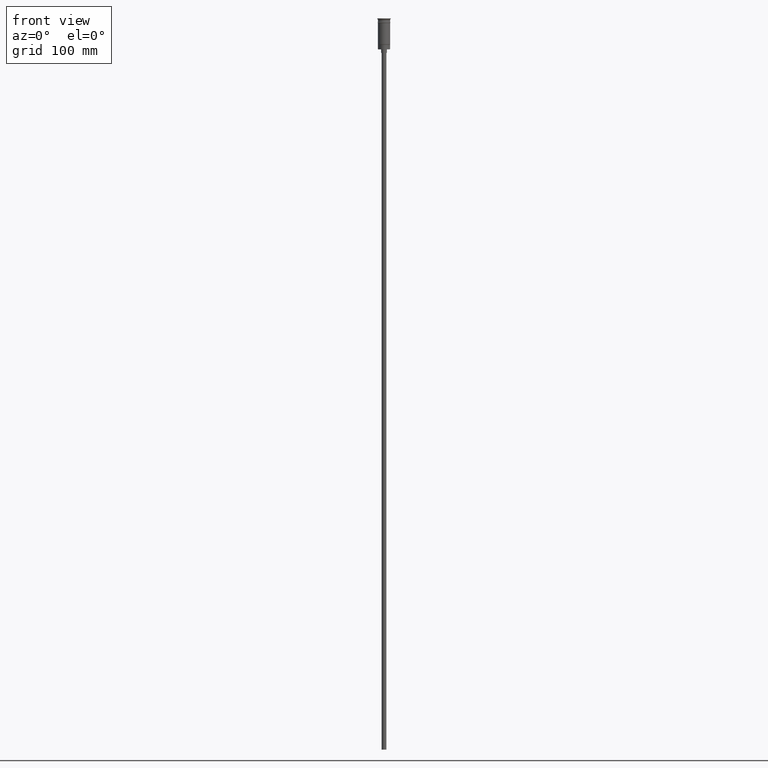
[diagram: clean part render]
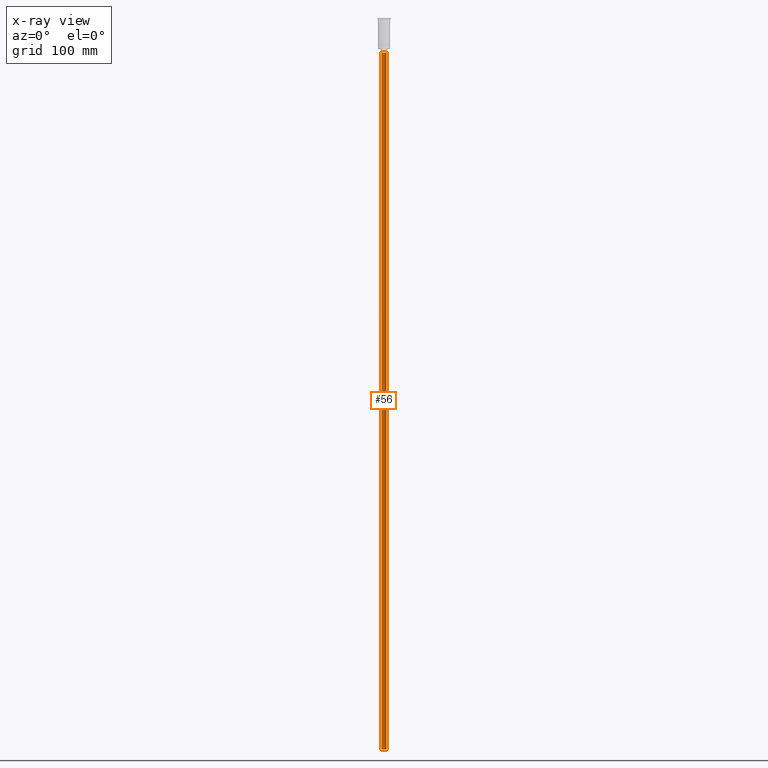
[diagram: x-ray — body ghosted, one internal face saturated and labeled with its STEP entity id]
A machine part, front view, then the same camera in x-ray: the body is ghosted and one INTERNAL B-rep face — a face not visible from any outside direction — is saturated and labeled: STEP entity #56.
In plain terms, the highlighted cylindrical surface (edge-blend (fillet) strip) has radius 2 mm, axis along (-0, -0, 1).
Its self-contained STEP definition (entity closure, byte-faithful):
#13 = ORIENTED_EDGE ( 'NONE', *, *, #1457, .T. ) ;
#56 = ADVANCED_FACE ( 'NONE', ( #1218 ), #554, .T. ) ;
#94 = EDGE_CURVE ( 'NONE', #1377, #1501, #175, .T. ) ;
#113 = DIRECTION ( 'NONE',  ( 0.000000000000000000, 0.000000000000000000, -1.000000000000000000 ) ) ;
#139 = CARTESIAN_POINT ( 'NONE',  ( 2.000000000000000000, 0.000000000000000000, -626.5000000000000000 ) ) ;
#157 = CIRCLE ( 'NONE', #645, 2.000000000000000000 ) ;
#175 = CIRCLE ( 'NONE', #1078, 2.000000000000000000 ) ;
#198 = EDGE_CURVE ( 'NONE', #1377, #408, #374, .T. ) ;
#206 = VERTEX_POINT ( 'NONE', #887 ) ;
#297 = DIRECTION ( 'NONE',  ( -0.000000000000000000, -0.000000000000000000, 1.000000000000000000 ) ) ;
#315 = DIRECTION ( 'NONE',  ( 1.000000000000000000, 0.000000000000000000, 0.000000000000000000 ) ) ;
#342 = ORIENTED_EDGE ( 'NONE', *, *, #94, .F. ) ;
#352 = CARTESIAN_POINT ( 'NONE',  ( -2.000000000000000000, 2.449293598294706414E-16, -626.5000000000000000 ) ) ;
#374 = LINE ( 'NONE', #352, #638 ) ;
#391 = DIRECTION ( 'NONE',  ( -0.000000000000000000, -0.000000000000000000, 1.000000000000000000 ) ) ;
#395 = EDGE_CURVE ( 'NONE', #1501, #206, #1034, .T. ) ;
#398 = CARTESIAN_POINT ( 'NONE',  ( 2.000000000000000000, 0.000000000000000000, -626.5000000000000000 ) ) ;
#408 = VERTEX_POINT ( 'NONE', #1507 ) ;
#554 = CYLINDRICAL_SURFACE ( 'NONE', #1160, 2.000000000000000000 ) ;
#573 = CARTESIAN_POINT ( 'NONE',  ( -2.000000000000000000, 2.449293598294706414E-16, -626.5000000000000000 ) ) ;
#580 = CARTESIAN_POINT ( 'NONE',  ( 0.000000000000000000, 0.000000000000000000, -626.5000000000000000 ) ) ;
#638 = VECTOR ( 'NONE', #391, 1000.000000000000000 ) ;
#645 = AXIS2_PLACEMENT_3D ( 'NONE', #1124, #113, #1005 ) ;
#671 = ORIENTED_EDGE ( 'NONE', *, *, #395, .F. ) ;
#842 = CARTESIAN_POINT ( 'NONE',  ( 0.000000000000000000, 0.000000000000000000, -626.5000000000000000 ) ) ;
#850 = VECTOR ( 'NONE', #297, 1000.000000000000000 ) ;
#887 = CARTESIAN_POINT ( 'NONE',  ( 2.000000000000000000, 0.000000000000000000, -29.50000000000000000 ) ) ;
#939 = DIRECTION ( 'NONE',  ( -0.000000000000000000, -0.000000000000000000, 1.000000000000000000 ) ) ;
#1005 = DIRECTION ( 'NONE',  ( -1.000000000000000000, 0.000000000000000000, 0.000000000000000000 ) ) ;
#1034 = LINE ( 'NONE', #398, #850 ) ;
#1078 = AXIS2_PLACEMENT_3D ( 'NONE', #580, #1322, #1546 ) ;
#1124 = CARTESIAN_POINT ( 'NONE',  ( 0.000000000000000000, 0.000000000000000000, -29.50000000000000000 ) ) ;
#1135 = ORIENTED_EDGE ( 'NONE', *, *, #198, .T. ) ;
#1160 = AXIS2_PLACEMENT_3D ( 'NONE', #842, #939, #315 ) ;
#1218 = FACE_OUTER_BOUND ( 'NONE', #1270, .T. ) ;
#1270 = EDGE_LOOP ( 'NONE', ( #342, #1135, #13, #671 ) ) ;
#1322 = DIRECTION ( 'NONE',  ( 0.000000000000000000, 0.000000000000000000, -1.000000000000000000 ) ) ;
#1377 = VERTEX_POINT ( 'NONE', #573 ) ;
#1457 = EDGE_CURVE ( 'NONE', #408, #206, #157, .T. ) ;
#1501 = VERTEX_POINT ( 'NONE', #139 ) ;
#1507 = CARTESIAN_POINT ( 'NONE',  ( -2.000000000000000000, 2.449293598294706414E-16, -29.50000000000000000 ) ) ;
#1546 = DIRECTION ( 'NONE',  ( -1.000000000000000000, 0.000000000000000000, 0.000000000000000000 ) ) ;